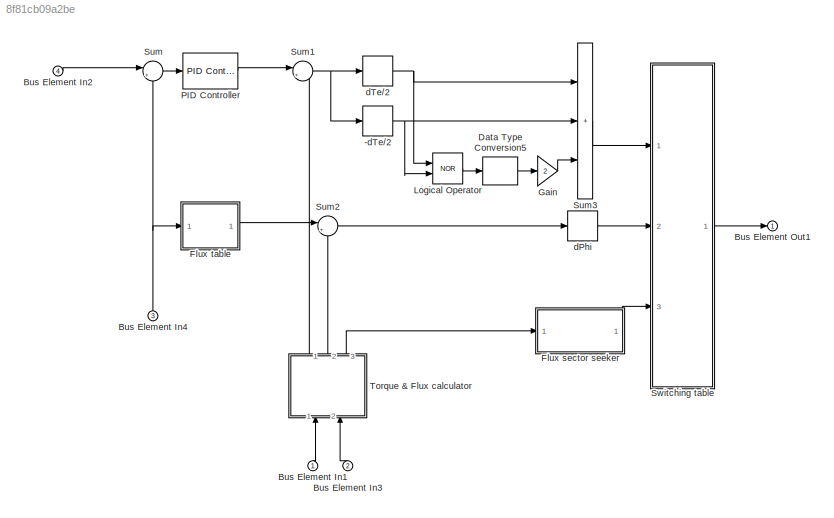
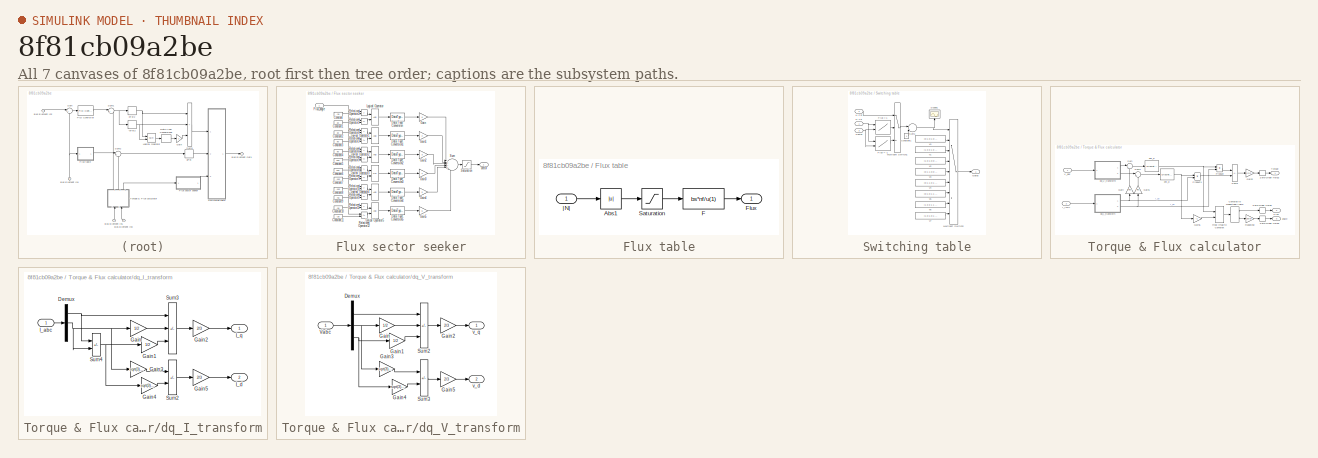
[diagram: thumbnail index - all 7 canvases of the model, root first then tree order]
MODEL slx_8f81cb09a2be
KIND model
CONFIG AbsTol = auto
CONFIG EnableMultiTasking = off
CONFIG FixedStep = auto
CONFIG MaxStep = auto
CONFIG MinStep = auto
CONFIG RelTol = 1e-3
CONFIG SampleTimeConstraint = Unconstrained
CONFIG Solver = VariableStepAuto
CONFIG SolverName = VariableStepAuto
CONFIG StartTime = 0.0
CONFIG StopTime = 10.0
BLOCK [Relay] -dTe//2
  OffOutputValue = 3
  OffSwitchValue = -1/20000
  OnOutputValue = 0
  OnSwitchValue = 0
BLOCK [Inport] Bus Element In1
  NameLocation = right
BLOCK [Inport] Bus Element In2
  Port = 4
BLOCK [Inport] Bus Element In3
  NameLocation = right
  Port = 2
BLOCK [Inport] Bus Element In4
  NameLocation = right
  Port = 3
BLOCK [Outport] Bus Element Out1
BLOCK [DataTypeConversion] Data Type Conversion5
  NameLocation = top
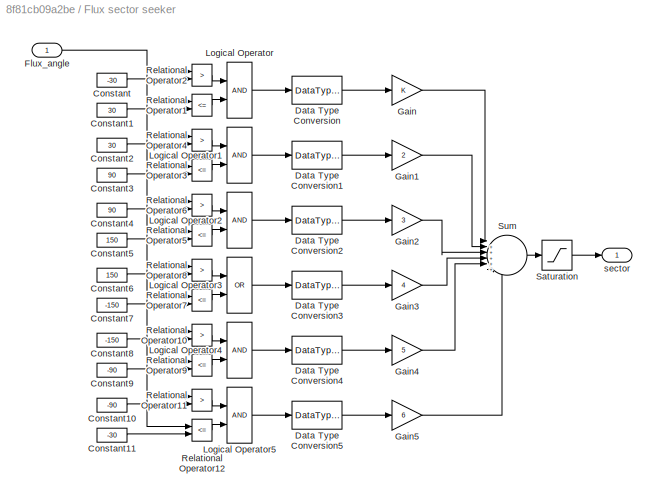
BLOCK [SubSystem] Flux sector seeker
  AncestorBlock = electricdrivelib/AC drives/DTC Induction Motor Drive/DTC/Flux sector seeker
  NameLocation = top
  Ports = [1, 1]
  RequestExecContextInheritance = off
BLOCK [Constant] Flux sector seeker/Constant
  Value = -30
BLOCK [Constant] Flux sector seeker/Constant1
  Value = 30
BLOCK [Constant] Flux sector seeker/Constant10
  Value = -90
BLOCK [Constant] Flux sector seeker/Constant11
  Value = -30
BLOCK [Constant] Flux sector seeker/Constant2
  Value = 30
BLOCK [Constant] Flux sector seeker/Constant3
  Value = 90
BLOCK [Constant] Flux sector seeker/Constant4
  Value = 90
BLOCK [Constant] Flux sector seeker/Constant5
  Value = 150
BLOCK [Constant] Flux sector seeker/Constant6
  Value = 150
BLOCK [Constant] Flux sector seeker/Constant7
  Value = -150
BLOCK [Constant] Flux sector seeker/Constant8
  Value = -150
BLOCK [Constant] Flux sector seeker/Constant9
  Value = -90
BLOCK [DataTypeConversion] Flux sector seeker/Data Type Conversion
  NameLocation = top
BLOCK [DataTypeConversion] Flux sector seeker/Data Type Conversion1
  NameLocation = top
BLOCK [DataTypeConversion] Flux sector seeker/Data Type Conversion2
  NameLocation = top
BLOCK [DataTypeConversion] Flux sector seeker/Data Type Conversion3
  NameLocation = top
BLOCK [DataTypeConversion] Flux sector seeker/Data Type Conversion4
  NameLocation = top
BLOCK [DataTypeConversion] Flux sector seeker/Data Type Conversion5
  NameLocation = top
BLOCK [Inport] Flux sector seeker/Flux_angle
BLOCK [Gain] Flux sector seeker/Gain
  OutDataTypeStr = Inherit: Same as input
  ParamDataTypeStr = Inherit: Same as input
  SaturateOnIntegerOverflow = on
BLOCK [Gain] Flux sector seeker/Gain1
  Gain = 2
  OutDataTypeStr = Inherit: Same as input
  ParamDataTypeStr = Inherit: Same as input
  SaturateOnIntegerOverflow = on
BLOCK [Gain] Flux sector seeker/Gain2
  Gain = 3
  OutDataTypeStr = Inherit: Same as input
  ParamDataTypeStr = Inherit: Same as input
  SaturateOnIntegerOverflow = on
BLOCK [Gain] Flux sector seeker/Gain3
  Gain = 4
  OutDataTypeStr = Inherit: Same as input
  ParamDataTypeStr = Inherit: Same as input
  SaturateOnIntegerOverflow = on
BLOCK [Gain] Flux sector seeker/Gain4
  Gain = 5
  OutDataTypeStr = Inherit: Same as input
  ParamDataTypeStr = Inherit: Same as input
  SaturateOnIntegerOverflow = on
BLOCK [Gain] Flux sector seeker/Gain5
  Gain = 6
  OutDataTypeStr = Inherit: Same as input
  ParamDataTypeStr = Inherit: Same as input
  SaturateOnIntegerOverflow = on
BLOCK [Logic] Flux sector seeker/Logical Operator
  Ports = [2, 1]
BLOCK [Logic] Flux sector seeker/Logical Operator1
  Ports = [2, 1]
BLOCK [Logic] Flux sector seeker/Logical Operator2
  Ports = [2, 1]
BLOCK [Logic] Flux sector seeker/Logical Operator3
  Operator = OR
  Ports = [2, 1]
BLOCK [Logic] Flux sector seeker/Logical Operator4
  Ports = [2, 1]
BLOCK [Logic] Flux sector seeker/Logical Operator5
  Ports = [2, 1]
BLOCK [RelationalOperator] Flux sector seeker/Relational Operator1
  Operator = <=
  Ports = [2, 1]
BLOCK [RelationalOperator] Flux sector seeker/Relational Operator10
  Operator = >
  Ports = [2, 1]
BLOCK [RelationalOperator] Flux sector seeker/Relational Operator11
  Operator = >
  Ports = [2, 1]
BLOCK [RelationalOperator] Flux sector seeker/Relational Operator12
  Operator = <=
  Ports = [2, 1]
BLOCK [RelationalOperator] Flux sector seeker/Relational Operator2
  Operator = >
  Ports = [2, 1]
BLOCK [RelationalOperator] Flux sector seeker/Relational Operator3
  Operator = <=
  Ports = [2, 1]
BLOCK [RelationalOperator] Flux sector seeker/Relational Operator4
  Operator = >
  Ports = [2, 1]
BLOCK [RelationalOperator] Flux sector seeker/Relational Operator5
  Operator = <=
  Ports = [2, 1]
BLOCK [RelationalOperator] Flux sector seeker/Relational Operator6
  Operator = >
  Ports = [2, 1]
BLOCK [RelationalOperator] Flux sector seeker/Relational Operator7
  Operator = <=
  Ports = [2, 1]
BLOCK [RelationalOperator] Flux sector seeker/Relational Operator8
  Operator = >
  Ports = [2, 1]
BLOCK [RelationalOperator] Flux sector seeker/Relational Operator9
  Operator = <=
  Ports = [2, 1]
BLOCK [Saturate] Flux sector seeker/Saturation
  LowerLimit = 1
  UpperLimit = 6
BLOCK [Sum] Flux sector seeker/Sum
  InputSameDT = on
  Inputs = |++++++
  OutDataTypeStr = Inherit: Same as first input
  Ports = [6, 1]
  SaturateOnIntegerOverflow = on
BLOCK [Outport] Flux sector seeker/sector
BLOCK [SubSystem] Flux table
  AncestorBlock = DriveInternalModels/AC drives/Speed Controller AC345/Speed Controller/Flux table
  Ports = [1, 1]
  RequestExecContextInheritance = off
BLOCK [Abs] Flux table/Abs1
BLOCK [Fcn] Flux table/F
  Expr = bs*nf/u(1)
BLOCK [Outport] Flux table/Flux
BLOCK [Saturate] Flux table/Saturation
  LowerLimit = bs
  UpperLimit = inf
BLOCK [Inport] Flux table/|N|
BLOCK [Gain] Gain
  Gain = 2
  OutDataTypeStr = Inherit: Same as input
  ParamDataTypeStr = Inherit: Same as input
  SaturateOnIntegerOverflow = on
BLOCK [Logic] Logical Operator
  AllPortsSameDT = off
  Operator = NOR
  Ports = [2, 1]
BLOCK [Reference] PID Controller  REF=simulink/Continuous/PID Controller
  Ports = [1, 1]
  SourceBlock = simulink/Continuous/PID Controller
  SourceProductBaseCode = SL
  SourceType = PID 1dof
BLOCK [Sum] Sum
  Inputs = |+-
  Ports = [2, 1]
BLOCK [Sum] Sum1
  Inputs = |+-
  Ports = [2, 1]
  SaturateOnIntegerOverflow = on
BLOCK [Sum] Sum2
  Inputs = |+-
  Ports = [2, 1]
  SaturateOnIntegerOverflow = on
BLOCK [Sum] Sum3
  IconShape = rectangular
  Inputs = +++
  Ports = [3, 1]
  SaturateOnIntegerOverflow = on
BLOCK [SubSystem] Switching table
  AncestorBlock = electricdrivelib/AC drives/DTC Induction Motor Drive/DTC/Switching table
  Ports = [3, 1]
  RequestExecContextInheritance = off
BLOCK [Constant] Switching table/Constant1
BLOCK [Lookup2D] Switching table/Flux = -1
  ColumnIndex = [1;2;3;4;5;6]
  InputSameDT = off
  RowIndex = [1;2;3]
  Table = [3 4 5 6 1 2;7 0 7 0 7 0;5 6 1 2 3 4]
BLOCK [Lookup2D] Switching table/Flux = 1
  ColumnIndex = [1;2;3;4;5;6]
  InputSameDT = off
  NameLocation = top
  RowIndex = [1;2;3]
  Table = [2 3 4 5 6 1;0 7 0 7 0 7;6 1 2 3 4 5]
BLOCK [Outport] Switching table/Gates
BLOCK [Inport] Switching table/H Phi
  NameLocation = top
  Port = 2
BLOCK [Inport] Switching table/H Te
  NameLocation = top
BLOCK [MultiPortSwitch] Switching table/Multiport Switch1
  InputSameDT = off
  Inputs = 2
  Ports = [3, 1]
BLOCK [MultiPortSwitch] Switching table/Multiport Switch2
  InputSameDT = off
  Inputs = 8
  Ports = [9, 1]
BLOCK [Scope] Switching table/Scope1
  Floating = off
  NameLocation = left
  NumInputPorts = 1
  Ports = [1]
  ScopeSpecificationString = C++SS(StrPVP('Location','[5, 49, 1371, 727]'),StrPVP('Open','off'),StrPVP('ZoomMode','xonly'),MxPVP('AxesTitles',54,'struct(''axes1'',''%<SignalLabel>'')'),MxPVP('ScopeGraphics',57,'struct(''FigureColor'',''[0.501960784313725 0.501960784313725 0.501960784313725]'',''AxesColor'',''[0 0 0]'',''AxesTickColor'',''[1 1 1]'',''LineColors'',''[1 1 0;1 0 1;0 1 1;1 0 0;0 1 0;0 0 1]'',''LineStyles'',''-|-|-...<+379ch>
BLOCK [Inport] Switching table/Sector
  Port = 3
BLOCK [Sum] Switching table/Sum1
  Inputs = |++
  Ports = [2, 1]
  SaturateOnIntegerOverflow = on
BLOCK [Constant] Switching table/v0
  Value = [0 1 0 1 0 1]
BLOCK [Constant] Switching table/v1
  Value = [1 0 0 1 0 1]
BLOCK [Constant] Switching table/v2
  Value = [1 0 1 0 0 1]
BLOCK [Constant] Switching table/v3
  Value = [0 1 1 0 0 1]
BLOCK [Constant] Switching table/v4
  Value = [0 1 1 0 1 0]
BLOCK [Constant] Switching table/v5
  Value = [0 1 0 1 1 0]
BLOCK [Constant] Switching table/v6
  Value = [1 0 0 1 1 0]
BLOCK [Constant] Switching table/v7
  Value = [1 0 1 0 1 0]
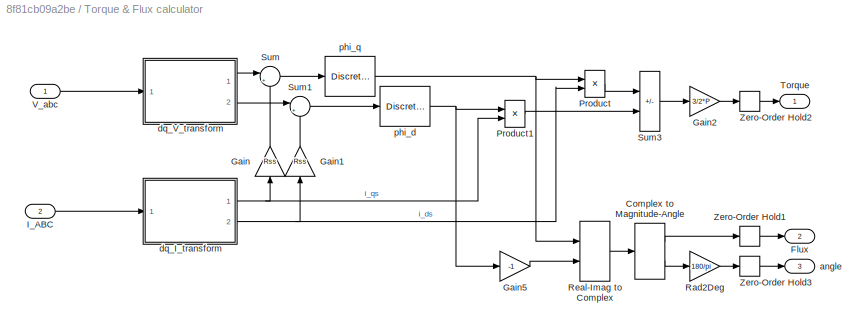
BLOCK [SubSystem] Torque & Flux calculator
  AncestorBlock = electricdrivelib/AC drives/DTC Induction Motor Drive/DTC/Torque & Flux calculator
  NameLocation = right
  Ports = [2, 3]
  RequestExecContextInheritance = off
BLOCK [ComplexToMagnitudeAngle] Torque & Flux calculator/Complex to Magnitude-Angle
  Ports = [1, 2]
BLOCK [Outport] Torque & Flux calculator/Flux
  Port = 2
BLOCK [Gain] Torque & Flux calculator/Gain
  Gain = Rss
  NameLocation = right
  OutDataTypeStr = Inherit: Same as input
  ParamDataTypeStr = Inherit: Same as input
  SaturateOnIntegerOverflow = on
BLOCK [Gain] Torque & Flux calculator/Gain1
  Gain = Rss
  NameLocation = right
  OutDataTypeStr = Inherit: Same as input
  ParamDataTypeStr = Inherit: Same as input
  SaturateOnIntegerOverflow = on
BLOCK [Gain] Torque & Flux calculator/Gain2
  Gain = 3/2*P
  OutDataTypeStr = Inherit: Same as input
  ParamDataTypeStr = Inherit: Same as input
  SaturateOnIntegerOverflow = on
BLOCK [Gain] Torque & Flux calculator/Gain5
  Gain = -1
  OutDataTypeStr = Inherit: Same as input
  ParamDataTypeStr = Inherit: Same as input
  SaturateOnIntegerOverflow = on
BLOCK [Inport] Torque & Flux calculator/I_ABC
  Port = 2
BLOCK [Product] Torque & Flux calculator/Product
  OutDataTypeStr = Inherit: Same as first input
  Ports = [2, 1]
  SaturateOnIntegerOverflow = on
BLOCK [Product] Torque & Flux calculator/Product1
  OutDataTypeStr = Inherit: Same as first input
  Ports = [2, 1]
  SaturateOnIntegerOverflow = on
BLOCK [Gain] Torque & Flux calculator/Rad2Deg
  Gain = 180/pi
  OutDataTypeStr = Inherit: Same as input
  ParamDataTypeStr = Inherit: Same as input
  SaturateOnIntegerOverflow = on
BLOCK [RealImagToComplex] Torque & Flux calculator/Real-Imag to Complex
  Ports = [2, 1]
BLOCK [Sum] Torque & Flux calculator/Sum
  Inputs = |+-
  Ports = [2, 1]
  SaturateOnIntegerOverflow = on
BLOCK [Sum] Torque & Flux calculator/Sum1
  Inputs = |+-
  Ports = [2, 1]
  SaturateOnIntegerOverflow = on
BLOCK [Sum] Torque & Flux calculator/Sum3
  IconShape = rectangular
  Inputs = -+
  Ports = [2, 1]
  SaturateOnIntegerOverflow = on
BLOCK [Outport] Torque & Flux calculator/Torque
BLOCK [Inport] Torque & Flux calculator/V_abc
BLOCK [ZeroOrderHold] Torque & Flux calculator/Zero-Order Hold1
  SampleTime = Ts
BLOCK [ZeroOrderHold] Torque & Flux calculator/Zero-Order Hold2
  SampleTime = Ts
BLOCK [ZeroOrderHold] Torque & Flux calculator/Zero-Order Hold3
  SampleTime = Ts
BLOCK [Outport] Torque & Flux calculator/angle
  Port = 3
BLOCK [SubSystem] Torque & Flux calculator/dq_I_transform
  Ports = [1, 2]
  RequestExecContextInheritance = off
BLOCK [Demux] Torque & Flux calculator/dq_I_transform/Demux
  DisplayOption = none
  Outputs = 3
  Ports = [1, 3]
BLOCK [Gain] Torque & Flux calculator/dq_I_transform/Gain
  Gain = 1/2
  OutDataTypeStr = Inherit: Same as input
  ParamDataTypeStr = Inherit: Same as input
  SaturateOnIntegerOverflow = on
BLOCK [Gain] Torque & Flux calculator/dq_I_transform/Gain1
  Gain = 1/2
  OutDataTypeStr = Inherit: Same as input
  ParamDataTypeStr = Inherit: Same as input
  SaturateOnIntegerOverflow = on
BLOCK [Gain] Torque & Flux calculator/dq_I_transform/Gain2
  Gain = 2/3
  OutDataTypeStr = Inherit: Same as input
  ParamDataTypeStr = Inherit: Same as input
  SaturateOnIntegerOverflow = on
BLOCK [Gain] Torque & Flux calculator/dq_I_transform/Gain3
  Gain = sqrt(3)/2
  OutDataTypeStr = Inherit: Same as input
  ParamDataTypeStr = Inherit: Same as input
  SaturateOnIntegerOverflow = on
BLOCK [Gain] Torque & Flux calculator/dq_I_transform/Gain4
  Gain = sqrt(3)/2
  OutDataTypeStr = Inherit: Same as input
  ParamDataTypeStr = Inherit: Same as input
  SaturateOnIntegerOverflow = on
BLOCK [Gain] Torque & Flux calculator/dq_I_transform/Gain5
  Gain = 2/3
  OutDataTypeStr = Inherit: Same as input
  ParamDataTypeStr = Inherit: Same as input
  SaturateOnIntegerOverflow = on
BLOCK [Inport] Torque & Flux calculator/dq_I_transform/I_abc
BLOCK [Outport] Torque & Flux calculator/dq_I_transform/I_d
  Port = 2
BLOCK [Outport] Torque & Flux calculator/dq_I_transform/I_q
BLOCK [Sum] Torque & Flux calculator/dq_I_transform/Sum2
  IconShape = rectangular
  InputSameDT = on
  Inputs = -+
  OutDataTypeStr = Inherit: Same as first input
  Ports = [2, 1]
  SaturateOnIntegerOverflow = on
BLOCK [Sum] Torque & Flux calculator/dq_I_transform/Sum3
  IconShape = rectangular
  InputSameDT = on
  Inputs = +--
  OutDataTypeStr = Inherit: Same as first input
  Ports = [3, 1]
  SaturateOnIntegerOverflow = on
BLOCK [Sum] Torque & Flux calculator/dq_I_transform/Sum4
  IconShape = rectangular
  InputSameDT = on
  Inputs = --
  OutDataTypeStr = Inherit: Same as first input
  Ports = [2, 1]
  SaturateOnIntegerOverflow = on
BLOCK [SubSystem] Torque & Flux calculator/dq_V_transform
  Ports = [1, 2]
  RequestExecContextInheritance = off
BLOCK [Demux] Torque & Flux calculator/dq_V_transform/Demux
  DisplayOption = none
  Outputs = 3
  Ports = [1, 3]
BLOCK [Gain] Torque & Flux calculator/dq_V_transform/Gain
  Gain = 1/2
  OutDataTypeStr = Inherit: Same as input
  ParamDataTypeStr = Inherit: Same as input
  SaturateOnIntegerOverflow = on
BLOCK [Gain] Torque & Flux calculator/dq_V_transform/Gain1
  Gain = 1/2
  OutDataTypeStr = Inherit: Same as input
  ParamDataTypeStr = Inherit: Same as input
  SaturateOnIntegerOverflow = on
BLOCK [Gain] Torque & Flux calculator/dq_V_transform/Gain2
  Gain = 2/3
  OutDataTypeStr = Inherit: Same as input
  ParamDataTypeStr = Inherit: Same as input
  SaturateOnIntegerOverflow = on
BLOCK [Gain] Torque & Flux calculator/dq_V_transform/Gain3
  Gain = sqrt(3)/2
  OutDataTypeStr = Inherit: Same as input
  ParamDataTypeStr = Inherit: Same as input
  SaturateOnIntegerOverflow = on
BLOCK [Gain] Torque & Flux calculator/dq_V_transform/Gain4
  Gain = sqrt(3)/2
  OutDataTypeStr = Inherit: Same as input
  ParamDataTypeStr = Inherit: Same as input
  SaturateOnIntegerOverflow = on
BLOCK [Gain] Torque & Flux calculator/dq_V_transform/Gain5
  Gain = 2/3
  OutDataTypeStr = Inherit: Same as input
  ParamDataTypeStr = Inherit: Same as input
  SaturateOnIntegerOverflow = on
BLOCK [Sum] Torque & Flux calculator/dq_V_transform/Sum2
  IconShape = rectangular
  InputSameDT = on
  Inputs = +--
  OutDataTypeStr = Inherit: Same as first input
  Ports = [3, 1]
  SaturateOnIntegerOverflow = on
BLOCK [Sum] Torque & Flux calculator/dq_V_transform/Sum3
  IconShape = rectangular
  InputSameDT = on
  Inputs = -+
  OutDataTypeStr = Inherit: Same as first input
  Ports = [2, 1]
  SaturateOnIntegerOverflow = on
BLOCK [Inport] Torque & Flux calculator/dq_V_transform/Vabc
BLOCK [Outport] Torque & Flux calculator/dq_V_transform/v_d
  Port = 2
BLOCK [Outport] Torque & Flux calculator/dq_V_transform/v_q
BLOCK [DiscreteIntegrator] Torque & Flux calculator/phi_d
  ICPrevOutput = DiscIntNeverNeededParam
  ICPrevScaledInput = DiscIntNeverNeededParam
  IntegratorMethod = Integration: Trapezoidal
  Ports = [1, 1]
  SampleTime = Ts
BLOCK [DiscreteIntegrator] Torque & Flux calculator/phi_q
  ICPrevOutput = DiscIntNeverNeededParam
  ICPrevScaledInput = DiscIntNeverNeededParam
  IntegratorMethod = Integration: Trapezoidal
  NameLocation = top
  Ports = [1, 1]
  SampleTime = Ts
BLOCK [Relay] dPhi
  OffOutputValue = 2
  OffSwitchValue = -1/20000
  OnSwitchValue = 1/20000
BLOCK [Relay] dTe//2
  OffSwitchValue = 0
  OnSwitchValue = 1/20000
NET -dTe//2:1 -> Logical Operator:2, Sum3:2
LINE Bus Element In1:1 -> Torque & Flux calculator:1
LINE Bus Element In2:1 -> Sum:1
LINE Bus Element In3:1 -> Torque & Flux calculator:2
NET Bus Element In4:1 -> Flux table:1, Sum:2
LINE Data Type Conversion5:1 -> Gain:1
LINE Flux sector seeker:1 -> Switching table:3
LINE Flux table:1 -> Sum2:1
LINE Gain:1 -> Sum3:3
LINE Logical Operator:1 -> Data Type Conversion5:1
LINE PID Controller:1 -> Sum1:1
NET Sum1:1 -> -dTe//2:1, dTe//2:1
LINE Sum2:1 -> dPhi:1
LINE Sum3:1 -> Switching table:1
LINE Sum:1 -> PID Controller:1
LINE Switching table:1 -> Bus Element Out1:1
LINE Torque & Flux calculator:1 -> Sum1:2
LINE Torque & Flux calculator:2 -> Sum2:2
LINE Torque & Flux calculator:3 -> Flux sector seeker:1
LINE dPhi:1 -> Switching table:2
NET dTe//2:1 -> Logical Operator:1, Sum3:1
note: NET lines group one-source signal fan-out (src -> all destinations, sorted); 1:1 wires keep LINE
